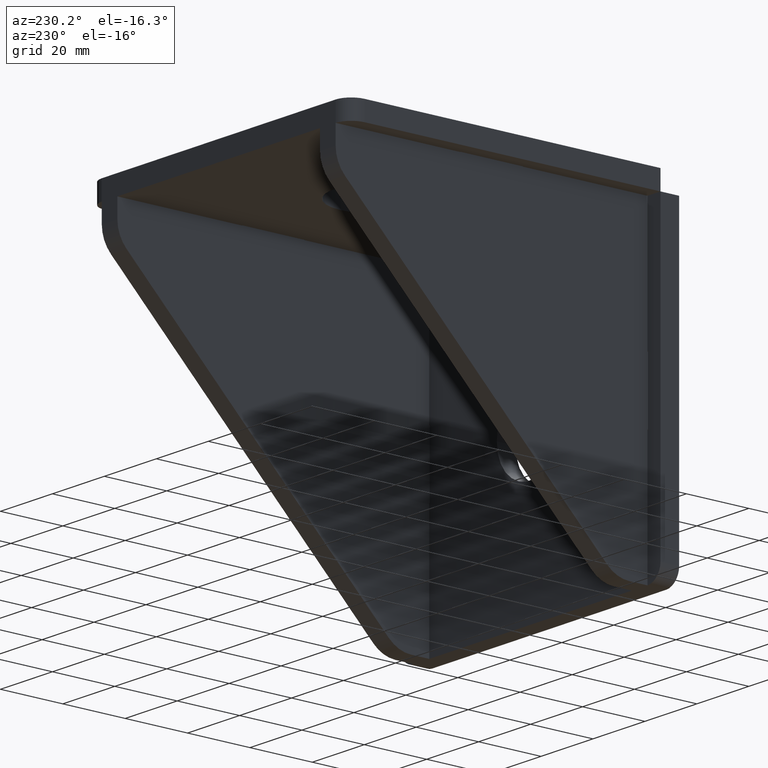
[diagram: clean part render]
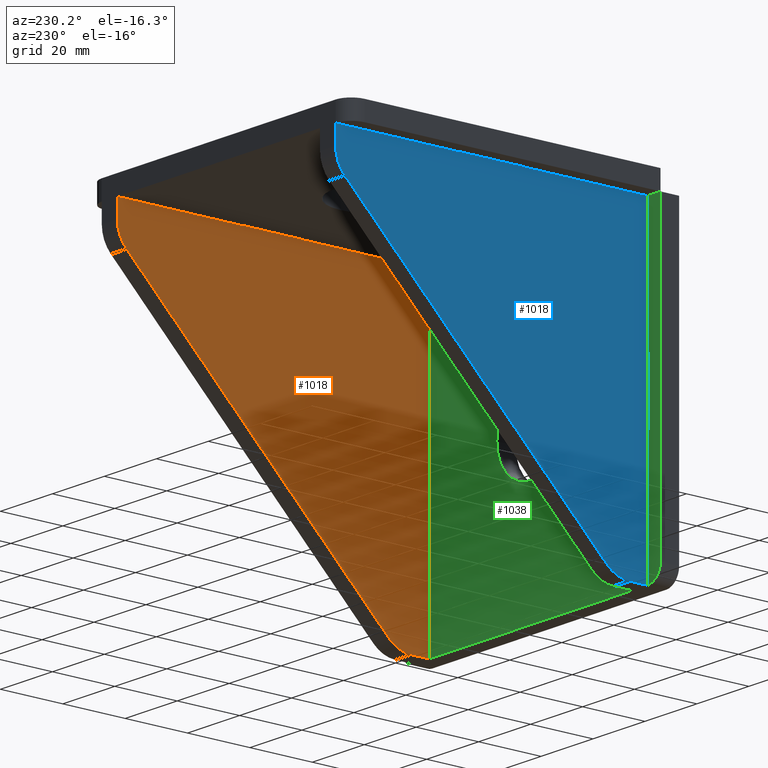
[diagram: same view with three faces highlighted in distinct colors, each labeled with its STEP entity id]
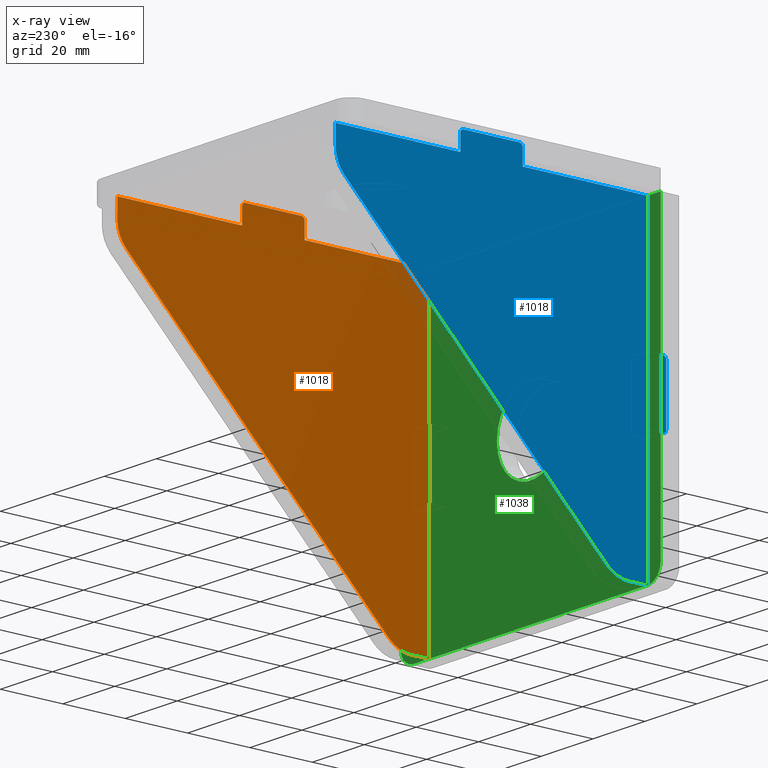
[diagram: x-ray of the same camera — body ghosted, the three highlighted faces saturated]
A machine part, auxiliary view with three faces highlighted in distinct colors.
The next image is the same camera in x-ray (body ghosted, the three faces saturated) — at least one of them is partly hidden behind the body in this view.
Their STEP definitions:

[orange] entity #1018 — the highlighted planar face has unit normal (-1, -0, 0).
#16 = CARTESIAN_POINT ( 'NONE',  ( 2.220446049250313081E-13, 5.204170427930421283E-15, -5.999999999999894307 ) ) ;
#19 = CARTESIAN_POINT ( 'NONE',  ( 10.00000000000034106, 99.99999999999998579, -6.000000000000394351 ) ) ;
#21 = DIRECTION ( 'NONE',  ( -1.000000000000000000, -3.620748295448003404E-32, 3.978414497066003544E-35 ) ) ;
#23 = VECTOR ( 'NONE', #777, 1000.000000000000000 ) ;
#46 = DIRECTION ( 'NONE',  ( 3.978414497066059672E-35, -5.700752635386218125E-32, -1.000000000000000000 ) ) ;
#48 = LINE ( 'NONE', #1036, #503 ) ;
#50 = EDGE_CURVE ( 'NONE', #370, #608, #868, .T. ) ;
#59 = EDGE_CURVE ( 'NONE', #971, #83, #770, .T. ) ;
#64 = VERTEX_POINT ( 'NONE', #1385 ) ;
#67 = DIRECTION ( 'NONE',  ( 1.000000000000000000, 3.620748295448003404E-32, -3.978414497066003544E-35 ) ) ;
#80 = VECTOR ( 'NONE', #253, 1000.000000000000000 ) ;
#83 = VERTEX_POINT ( 'NONE', #1263 ) ;
#84 = VECTOR ( 'NONE', #852, 1000.000000000000000 ) ;
#99 = VERTEX_POINT ( 'NONE', #876 ) ;
#109 = CIRCLE ( 'NONE', #451, 1.000000000000000888 ) ;
#110 = AXIS2_PLACEMENT_3D ( 'NONE', #642, #1374, #21 ) ;
#126 = DIRECTION ( 'NONE',  ( 1.000000000000000000, 0.000000000000000000, 0.000000000000000000 ) ) ;
#138 = VECTOR ( 'NONE', #914, 1000.000000000000000 ) ;
#150 = DIRECTION ( 'NONE',  ( 3.978414497066059672E-35, -5.700752635386218125E-32, -1.000000000000000000 ) ) ;
#155 = CARTESIAN_POINT ( 'NONE',  ( 40.99999999999981526, -6.000000000000000888, -5.999999999999950262 ) ) ;
#157 = LINE ( 'NONE', #1012, #23 ) ;
#164 = AXIS2_PLACEMENT_3D ( 'NONE', #585, #354, #468 ) ;
#167 = VECTOR ( 'NONE', #848, 1000.000000000000000 ) ;
#173 = DIRECTION ( 'NONE',  ( 1.000000000000000000, 0.000000000000000000, 0.000000000000000000 ) ) ;
#184 = CARTESIAN_POINT ( 'NONE',  ( 100.0000000000004263, 9.999999999999991118, -5.999999999999311662 ) ) ;
#186 = CARTESIAN_POINT ( 'NONE',  ( -6.000000000000005329, 58.99999999999997158, -6.000000000000060396 ) ) ;
#219 = EDGE_CURVE ( 'NONE', #1225, #544, #157, .T. ) ;
#223 = EDGE_CURVE ( 'NONE', #916, #538, #48, .T. ) ;
#230 = CARTESIAN_POINT ( 'NONE',  ( 5.857864376268118178, 90.00000000000001421, -5.999999999999616307 ) ) ;
#235 = EDGE_LOOP ( 'NONE', ( #519, #565, #496, #1411, #1087, #892, #836, #303, #379, #317, #1283, #1547, #1014, #613, #1059, #1434, #1125, #332, #1575 ) ) ;
#241 = CARTESIAN_POINT ( 'NONE',  ( -6.000000000000005329, 59.99999999999997158, -6.000000000000060396 ) ) ;
#253 = DIRECTION ( 'NONE',  ( 1.000000000000000000, 3.620748295448003404E-32, -3.978414497066003544E-35 ) ) ;
#284 = DIRECTION ( 'NONE',  ( 1.000000000000000000, 0.000000000000000000, 0.000000000000000000 ) ) ;
#303 = ORIENTED_EDGE ( 'NONE', *, *, #666, .T. ) ;
#317 = ORIENTED_EDGE ( 'NONE', *, *, #514, .F. ) ;
#322 = LINE ( 'NONE', #184, #1044 ) ;
#329 = EDGE_CURVE ( 'NONE', #1223, #916, #1277, .T. ) ;
#332 = ORIENTED_EDGE ( 'NONE', *, *, #647, .F. ) ;
#335 = DIRECTION ( 'NONE',  ( 1.000000000000000000, 3.620748295448003404E-32, -3.978414497066003544E-35 ) ) ;
#340 = EDGE_CURVE ( 'NONE', #99, #1301, #1488, .T. ) ;
#354 = DIRECTION ( 'NONE',  ( 3.978414497066059672E-35, -5.700752635386218125E-32, -1.000000000000000000 ) ) ;
#356 = VERTEX_POINT ( 'NONE', #449 ) ;
#370 = VERTEX_POINT ( 'NONE', #1335 ) ;
#377 = CARTESIAN_POINT ( 'NONE',  ( -12.00000000000001066, 59.99999999999997158, -6.000000000000172307 ) ) ;
#379 = ORIENTED_EDGE ( 'NONE', *, *, #219, .T. ) ;
#386 = FACE_OUTER_BOUND ( 'NONE', #235, .T. ) ;
#397 = CIRCLE ( 'NONE', #1546, 1.000000000000000000 ) ;
#421 = CIRCLE ( 'NONE', #1331, 1.000000000000000000 ) ;
#437 = EDGE_CURVE ( 'NONE', #1312, #356, #1579, .T. ) ;
#443 = LINE ( 'NONE', #793, #138 ) ;
#449 = CARTESIAN_POINT ( 'NONE',  ( 100.0000000000004263, 0.000000000000000000, -5.999999999999311662 ) ) ;
#451 = AXIS2_PLACEMENT_3D ( 'NONE', #1530, #902, #173 ) ;
#458 = CARTESIAN_POINT ( 'NONE',  ( 5.857864376268118178, 99.99999999999998579, -5.999999999999616307 ) ) ;
#468 = DIRECTION ( 'NONE',  ( 1.000000000000000000, 0.000000000000000000, 0.000000000000000000 ) ) ;
#472 = VERTEX_POINT ( 'NONE', #726 ) ;
#492 = CARTESIAN_POINT ( 'NONE',  ( 1.110223024625156540E-13, 99.99999999999998579, -5.999999999999838352 ) ) ;
#496 = ORIENTED_EDGE ( 'NONE', *, *, #1194, .F. ) ;
#503 = VECTOR ( 'NONE', #1157, 1000.000000000000000 ) ;
#514 = EDGE_CURVE ( 'NONE', #538, #544, #985, .T. ) ;
#517 = DIRECTION ( 'NONE',  ( -0.7071067811865483499, 0.7071067811865465735, -2.140574041746968964E-16 ) ) ;
#519 = ORIENTED_EDGE ( 'NONE', *, *, #59, .F. ) ;
#538 = VERTEX_POINT ( 'NONE', #874 ) ;
#544 = VERTEX_POINT ( 'NONE', #976 ) ;
#565 = ORIENTED_EDGE ( 'NONE', *, *, #764, .T. ) ;
#585 = CARTESIAN_POINT ( 'NONE',  ( 58.99999999999994316, -4.999999999999997335, -6.000000000000032863 ) ) ;
#607 = VECTOR ( 'NONE', #517, 1000.000000000000114 ) ;
#608 = VERTEX_POINT ( 'NONE', #880 ) ;
#611 = CIRCLE ( 'NONE', #1514, 9.999999999999994671 ) ;
#613 = ORIENTED_EDGE ( 'NONE', *, *, #1430, .T. ) ;
#621 = VERTEX_POINT ( 'NONE', #1382 ) ;
#628 = DIRECTION ( 'NONE',  ( 1.000000000000000000, 3.620748295448003404E-32, -3.978414497066003544E-35 ) ) ;
#632 = DIRECTION ( 'NONE',  ( -1.000000000000000000, 0.000000000000000000, 0.000000000000000000 ) ) ;
#642 = CARTESIAN_POINT ( 'NONE',  ( 2.220446049250313081E-13, 5.204170427930421283E-15, -5.999999999999894307 ) ) ;
#647 = EDGE_CURVE ( 'NONE', #820, #621, #1099, .T. ) ;
#666 = EDGE_CURVE ( 'NONE', #785, #1225, #109, .T. ) ;
#708 = CARTESIAN_POINT ( 'NONE',  ( -12.00000000000012079, 40.00000000000000711, -6.000000000000560441 ) ) ;
#726 = CARTESIAN_POINT ( 'NONE',  ( 100.0000000000004263, 5.857864376269026785, -5.999999999999311662 ) ) ;
#739 = EDGE_CURVE ( 'NONE', #1007, #370, #421, .T. ) ;
#764 = EDGE_CURVE ( 'NONE', #971, #472, #611, .T. ) ;
#770 = LINE ( 'NONE', #19, #607 ) ;
#777 = DIRECTION ( 'NONE',  ( 4.237045877651918877E-32, 1.000000000000000000, 4.005934284325450574E-32 ) ) ;
#779 = DIRECTION ( 'NONE',  ( 3.978414497066059672E-35, -5.700752635386218125E-32, -1.000000000000000000 ) ) ;
#780 = DIRECTION ( 'NONE',  ( -1.000000000000000000, 0.000000000000000000, 0.000000000000000000 ) ) ;
#785 = VERTEX_POINT ( 'NONE', #155 ) ;
#793 = CARTESIAN_POINT ( 'NONE',  ( 59.99999999999972289, -11.99999999999999645, -6.000000000000199840 ) ) ;
#820 = VERTEX_POINT ( 'NONE', #458 ) ;
#831 = DIRECTION ( 'NONE',  ( 1.000000000000000000, 3.620748295448003404E-32, -3.978414497066003544E-35 ) ) ;
#836 = ORIENTED_EDGE ( 'NONE', *, *, #854, .F. ) ;
#837 = CARTESIAN_POINT ( 'NONE',  ( 39.99999999999958789, -6.000000000000006217, -5.999999999999783284 ) ) ;
#838 = VECTOR ( 'NONE', #335, 1000.000000000000000 ) ;
#848 = DIRECTION ( 'NONE',  ( -4.237045877651918877E-32, -1.000000000000000000, -4.005934284325450574E-32 ) ) ;
#852 = DIRECTION ( 'NONE',  ( 4.237045877651918877E-32, 1.000000000000000000, 4.005934284325450574E-32 ) ) ;
#854 = EDGE_CURVE ( 'NONE', #785, #1301, #952, .T. ) ;
#868 = LINE ( 'NONE', #377, #1303 ) ;
#874 = CARTESIAN_POINT ( 'NONE',  ( 2.220446049250313081E-13, 5.204170427930421283E-15, -5.999999999999894307 ) ) ;
#876 = CARTESIAN_POINT ( 'NONE',  ( 59.99999999999972289, -4.999999999999997335, -6.000000000000199840 ) ) ;
#880 = CARTESIAN_POINT ( 'NONE',  ( 2.220446049250313081E-13, 59.99999999999997158, -5.999999999999894307 ) ) ;
#892 = ORIENTED_EDGE ( 'NONE', *, *, #340, .T. ) ;
#902 = DIRECTION ( 'NONE',  ( 3.978414497066059672E-35, -5.700752635386218125E-32, -1.000000000000000000 ) ) ;
#909 = DIRECTION ( 'NONE',  ( 3.978414497066059672E-35, -5.700752635386218125E-32, -1.000000000000000000 ) ) ;
#914 = DIRECTION ( 'NONE',  ( 4.237045877651918877E-32, 1.000000000000000000, 4.005934284325450574E-32 ) ) ;
#916 = VERTEX_POINT ( 'NONE', #1456 ) ;
#917 = VECTOR ( 'NONE', #67, 1000.000000000000000 ) ;
#926 = CARTESIAN_POINT ( 'NONE',  ( 89.99999999999953104, 5.857864376269058759, -6.000000000000227374 ) ) ;
#937 = DIRECTION ( 'NONE',  ( 4.237045877651918877E-32, 1.000000000000000000, 4.005934284325450574E-32 ) ) ;
#952 = LINE ( 'NONE', #837, #917 ) ;
#971 = VERTEX_POINT ( 'NONE', #1088 ) ;
#976 = CARTESIAN_POINT ( 'NONE',  ( 39.99999999999958789, -1.301042606982605321E-14, -5.999999999999783284 ) ) ;
#985 = LINE ( 'NONE', #998, #80 ) ;
#998 = CARTESIAN_POINT ( 'NONE',  ( 2.220446049250313081E-13, 5.204170427930421283E-15, -5.999999999999894307 ) ) ;
#1007 = VERTEX_POINT ( 'NONE', #186 ) ;
#1012 = CARTESIAN_POINT ( 'NONE',  ( 39.99999999999958789, -11.99999999999999645, -5.999999999999783284 ) ) ;
#1014 = ORIENTED_EDGE ( 'NONE', *, *, #1539, .T. ) ;
#1018 = ADVANCED_FACE ( 'NONE', ( #386 ), #1343, .T. ) ;
#1027 = EDGE_CURVE ( 'NONE', #621, #608, #1135, .T. ) ;
#1036 = CARTESIAN_POINT ( 'NONE',  ( 2.220446049250313081E-13, 5.204170427930421283E-15, -5.999999999999894307 ) ) ;
#1044 = VECTOR ( 'NONE', #937, 1000.000000000000000 ) ;
#1059 = ORIENTED_EDGE ( 'NONE', *, *, #739, .T. ) ;
#1060 = CARTESIAN_POINT ( 'NONE',  ( 39.99999999999958789, -4.999999999999997335, -5.999999999999783284 ) ) ;
#1073 = VECTOR ( 'NONE', #1113, 1000.000000000000000 ) ;
#1074 = CIRCLE ( 'NONE', #1281, 10.00000000000000000 ) ;
#1087 = ORIENTED_EDGE ( 'NONE', *, *, #1189, .F. ) ;
#1088 = CARTESIAN_POINT ( 'NONE',  ( 97.07106781186492128, 12.92893218813452272, -5.999999999999588773 ) ) ;
#1099 = LINE ( 'NONE', #492, #1073 ) ;
#1113 = DIRECTION ( 'NONE',  ( -1.000000000000000000, -3.620748295448003404E-32, 3.978414497066003544E-35 ) ) ;
#1117 = EDGE_CURVE ( 'NONE', #820, #83, #1074, .T. ) ;
#1125 = ORIENTED_EDGE ( 'NONE', *, *, #1027, .F. ) ;
#1135 = LINE ( 'NONE', #16, #167 ) ;
#1157 = DIRECTION ( 'NONE',  ( -4.237045877651918877E-32, -1.000000000000000000, -4.005934284325450574E-32 ) ) ;
#1168 = CARTESIAN_POINT ( 'NONE',  ( -5.000000000000115463, 40.00000000000000711, -6.000000000000227374 ) ) ;
#1189 = EDGE_CURVE ( 'NONE', #99, #1312, #443, .T. ) ;
#1194 = EDGE_CURVE ( 'NONE', #356, #472, #322, .T. ) ;
#1223 = VERTEX_POINT ( 'NONE', #1168 ) ;
#1225 = VERTEX_POINT ( 'NONE', #1060 ) ;
#1263 = CARTESIAN_POINT ( 'NONE',  ( 12.92893218813417988, 97.07106781186548972, -6.000000000000116351 ) ) ;
#1277 = LINE ( 'NONE', #708, #1568 ) ;
#1281 = AXIS2_PLACEMENT_3D ( 'NONE', #230, #779, #632 ) ;
#1283 = ORIENTED_EDGE ( 'NONE', *, *, #223, .F. ) ;
#1292 = CARTESIAN_POINT ( 'NONE',  ( -5.000000000000115463, 58.99999999999997158, -6.000000000000227374 ) ) ;
#1297 = CARTESIAN_POINT ( 'NONE',  ( 58.99999999999994316, -6.000000000000000888, -6.000000000000032863 ) ) ;
#1301 = VERTEX_POINT ( 'NONE', #1297 ) ;
#1303 = VECTOR ( 'NONE', #628, 1000.000000000000000 ) ;
#1312 = VERTEX_POINT ( 'NONE', #1413 ) ;
#1319 = CARTESIAN_POINT ( 'NONE',  ( -5.000000000000115463, 41.00000000000000711, -6.000000000000227374 ) ) ;
#1331 = AXIS2_PLACEMENT_3D ( 'NONE', #1292, #46, #284 ) ;
#1335 = CARTESIAN_POINT ( 'NONE',  ( -5.000000000000115463, 59.99999999999997158, -6.000000000000227374 ) ) ;
#1343 = PLANE ( 'NONE',  #110 ) ;
#1374 = DIRECTION ( 'NONE',  ( -3.978414497066003544E-35, -5.700752635386218125E-32, -1.000000000000000000 ) ) ;
#1382 = CARTESIAN_POINT ( 'NONE',  ( 1.110223024625156540E-13, 99.99999999999998579, -5.999999999999838352 ) ) ;
#1385 = CARTESIAN_POINT ( 'NONE',  ( -6.000000000000560441, 41.00000000000000711, -5.999999999999894307 ) ) ;
#1411 = ORIENTED_EDGE ( 'NONE', *, *, #437, .F. ) ;
#1413 = CARTESIAN_POINT ( 'NONE',  ( 59.99999999999972289, -2.602085213965210642E-15, -6.000000000000199840 ) ) ;
#1430 = EDGE_CURVE ( 'NONE', #64, #1007, #1588, .T. ) ;
#1434 = ORIENTED_EDGE ( 'NONE', *, *, #50, .T. ) ;
#1451 = CARTESIAN_POINT ( 'NONE',  ( 2.220446049250313081E-13, 5.204170427930421283E-15, -5.999999999999894307 ) ) ;
#1456 = CARTESIAN_POINT ( 'NONE',  ( 2.220446049250313081E-13, 40.00000000000000711, -5.999999999999894307 ) ) ;
#1488 = CIRCLE ( 'NONE', #164, 1.000000000000000888 ) ;
#1514 = AXIS2_PLACEMENT_3D ( 'NONE', #926, #909, #780 ) ;
#1530 = CARTESIAN_POINT ( 'NONE',  ( 40.99999999999981526, -4.999999999999997335, -5.999999999999950262 ) ) ;
#1539 = EDGE_CURVE ( 'NONE', #1223, #64, #397, .T. ) ;
#1546 = AXIS2_PLACEMENT_3D ( 'NONE', #1319, #150, #126 ) ;
#1547 = ORIENTED_EDGE ( 'NONE', *, *, #329, .F. ) ;
#1568 = VECTOR ( 'NONE', #831, 1000.000000000000000 ) ;
#1575 = ORIENTED_EDGE ( 'NONE', *, *, #1117, .T. ) ;
#1579 = LINE ( 'NONE', #1451, #838 ) ;
#1588 = LINE ( 'NONE', #241, #84 ) ;

[blue] entity #1018 — the highlighted planar face has unit normal (-1, -0, 0).
#16 = CARTESIAN_POINT ( 'NONE',  ( 2.220446049250313081E-13, 5.204170427930421283E-15, -5.999999999999894307 ) ) ;
#19 = CARTESIAN_POINT ( 'NONE',  ( 10.00000000000034106, 99.99999999999998579, -6.000000000000394351 ) ) ;
#21 = DIRECTION ( 'NONE',  ( -1.000000000000000000, -3.620748295448003404E-32, 3.978414497066003544E-35 ) ) ;
#23 = VECTOR ( 'NONE', #777, 1000.000000000000000 ) ;
#46 = DIRECTION ( 'NONE',  ( 3.978414497066059672E-35, -5.700752635386218125E-32, -1.000000000000000000 ) ) ;
#48 = LINE ( 'NONE', #1036, #503 ) ;
#50 = EDGE_CURVE ( 'NONE', #370, #608, #868, .T. ) ;
#59 = EDGE_CURVE ( 'NONE', #971, #83, #770, .T. ) ;
#64 = VERTEX_POINT ( 'NONE', #1385 ) ;
#67 = DIRECTION ( 'NONE',  ( 1.000000000000000000, 3.620748295448003404E-32, -3.978414497066003544E-35 ) ) ;
#80 = VECTOR ( 'NONE', #253, 1000.000000000000000 ) ;
#83 = VERTEX_POINT ( 'NONE', #1263 ) ;
#84 = VECTOR ( 'NONE', #852, 1000.000000000000000 ) ;
#99 = VERTEX_POINT ( 'NONE', #876 ) ;
#109 = CIRCLE ( 'NONE', #451, 1.000000000000000888 ) ;
#110 = AXIS2_PLACEMENT_3D ( 'NONE', #642, #1374, #21 ) ;
#126 = DIRECTION ( 'NONE',  ( 1.000000000000000000, 0.000000000000000000, 0.000000000000000000 ) ) ;
#138 = VECTOR ( 'NONE', #914, 1000.000000000000000 ) ;
#150 = DIRECTION ( 'NONE',  ( 3.978414497066059672E-35, -5.700752635386218125E-32, -1.000000000000000000 ) ) ;
#155 = CARTESIAN_POINT ( 'NONE',  ( 40.99999999999981526, -6.000000000000000888, -5.999999999999950262 ) ) ;
#157 = LINE ( 'NONE', #1012, #23 ) ;
#164 = AXIS2_PLACEMENT_3D ( 'NONE', #585, #354, #468 ) ;
#167 = VECTOR ( 'NONE', #848, 1000.000000000000000 ) ;
#173 = DIRECTION ( 'NONE',  ( 1.000000000000000000, 0.000000000000000000, 0.000000000000000000 ) ) ;
#184 = CARTESIAN_POINT ( 'NONE',  ( 100.0000000000004263, 9.999999999999991118, -5.999999999999311662 ) ) ;
#186 = CARTESIAN_POINT ( 'NONE',  ( -6.000000000000005329, 58.99999999999997158, -6.000000000000060396 ) ) ;
#219 = EDGE_CURVE ( 'NONE', #1225, #544, #157, .T. ) ;
#223 = EDGE_CURVE ( 'NONE', #916, #538, #48, .T. ) ;
#230 = CARTESIAN_POINT ( 'NONE',  ( 5.857864376268118178, 90.00000000000001421, -5.999999999999616307 ) ) ;
#235 = EDGE_LOOP ( 'NONE', ( #519, #565, #496, #1411, #1087, #892, #836, #303, #379, #317, #1283, #1547, #1014, #613, #1059, #1434, #1125, #332, #1575 ) ) ;
#241 = CARTESIAN_POINT ( 'NONE',  ( -6.000000000000005329, 59.99999999999997158, -6.000000000000060396 ) ) ;
#253 = DIRECTION ( 'NONE',  ( 1.000000000000000000, 3.620748295448003404E-32, -3.978414497066003544E-35 ) ) ;
#284 = DIRECTION ( 'NONE',  ( 1.000000000000000000, 0.000000000000000000, 0.000000000000000000 ) ) ;
#303 = ORIENTED_EDGE ( 'NONE', *, *, #666, .T. ) ;
#317 = ORIENTED_EDGE ( 'NONE', *, *, #514, .F. ) ;
#322 = LINE ( 'NONE', #184, #1044 ) ;
#329 = EDGE_CURVE ( 'NONE', #1223, #916, #1277, .T. ) ;
#332 = ORIENTED_EDGE ( 'NONE', *, *, #647, .F. ) ;
#335 = DIRECTION ( 'NONE',  ( 1.000000000000000000, 3.620748295448003404E-32, -3.978414497066003544E-35 ) ) ;
#340 = EDGE_CURVE ( 'NONE', #99, #1301, #1488, .T. ) ;
#354 = DIRECTION ( 'NONE',  ( 3.978414497066059672E-35, -5.700752635386218125E-32, -1.000000000000000000 ) ) ;
#356 = VERTEX_POINT ( 'NONE', #449 ) ;
#370 = VERTEX_POINT ( 'NONE', #1335 ) ;
#377 = CARTESIAN_POINT ( 'NONE',  ( -12.00000000000001066, 59.99999999999997158, -6.000000000000172307 ) ) ;
#379 = ORIENTED_EDGE ( 'NONE', *, *, #219, .T. ) ;
#386 = FACE_OUTER_BOUND ( 'NONE', #235, .T. ) ;
#397 = CIRCLE ( 'NONE', #1546, 1.000000000000000000 ) ;
#421 = CIRCLE ( 'NONE', #1331, 1.000000000000000000 ) ;
#437 = EDGE_CURVE ( 'NONE', #1312, #356, #1579, .T. ) ;
#443 = LINE ( 'NONE', #793, #138 ) ;
#449 = CARTESIAN_POINT ( 'NONE',  ( 100.0000000000004263, 0.000000000000000000, -5.999999999999311662 ) ) ;
#451 = AXIS2_PLACEMENT_3D ( 'NONE', #1530, #902, #173 ) ;
#458 = CARTESIAN_POINT ( 'NONE',  ( 5.857864376268118178, 99.99999999999998579, -5.999999999999616307 ) ) ;
#468 = DIRECTION ( 'NONE',  ( 1.000000000000000000, 0.000000000000000000, 0.000000000000000000 ) ) ;
#472 = VERTEX_POINT ( 'NONE', #726 ) ;
#492 = CARTESIAN_POINT ( 'NONE',  ( 1.110223024625156540E-13, 99.99999999999998579, -5.999999999999838352 ) ) ;
#496 = ORIENTED_EDGE ( 'NONE', *, *, #1194, .F. ) ;
#503 = VECTOR ( 'NONE', #1157, 1000.000000000000000 ) ;
#514 = EDGE_CURVE ( 'NONE', #538, #544, #985, .T. ) ;
#517 = DIRECTION ( 'NONE',  ( -0.7071067811865483499, 0.7071067811865465735, -2.140574041746968964E-16 ) ) ;
#519 = ORIENTED_EDGE ( 'NONE', *, *, #59, .F. ) ;
#538 = VERTEX_POINT ( 'NONE', #874 ) ;
#544 = VERTEX_POINT ( 'NONE', #976 ) ;
#565 = ORIENTED_EDGE ( 'NONE', *, *, #764, .T. ) ;
#585 = CARTESIAN_POINT ( 'NONE',  ( 58.99999999999994316, -4.999999999999997335, -6.000000000000032863 ) ) ;
#607 = VECTOR ( 'NONE', #517, 1000.000000000000114 ) ;
#608 = VERTEX_POINT ( 'NONE', #880 ) ;
#611 = CIRCLE ( 'NONE', #1514, 9.999999999999994671 ) ;
#613 = ORIENTED_EDGE ( 'NONE', *, *, #1430, .T. ) ;
#621 = VERTEX_POINT ( 'NONE', #1382 ) ;
#628 = DIRECTION ( 'NONE',  ( 1.000000000000000000, 3.620748295448003404E-32, -3.978414497066003544E-35 ) ) ;
#632 = DIRECTION ( 'NONE',  ( -1.000000000000000000, 0.000000000000000000, 0.000000000000000000 ) ) ;
#642 = CARTESIAN_POINT ( 'NONE',  ( 2.220446049250313081E-13, 5.204170427930421283E-15, -5.999999999999894307 ) ) ;
#647 = EDGE_CURVE ( 'NONE', #820, #621, #1099, .T. ) ;
#666 = EDGE_CURVE ( 'NONE', #785, #1225, #109, .T. ) ;
#708 = CARTESIAN_POINT ( 'NONE',  ( -12.00000000000012079, 40.00000000000000711, -6.000000000000560441 ) ) ;
#726 = CARTESIAN_POINT ( 'NONE',  ( 100.0000000000004263, 5.857864376269026785, -5.999999999999311662 ) ) ;
#739 = EDGE_CURVE ( 'NONE', #1007, #370, #421, .T. ) ;
#764 = EDGE_CURVE ( 'NONE', #971, #472, #611, .T. ) ;
#770 = LINE ( 'NONE', #19, #607 ) ;
#777 = DIRECTION ( 'NONE',  ( 4.237045877651918877E-32, 1.000000000000000000, 4.005934284325450574E-32 ) ) ;
#779 = DIRECTION ( 'NONE',  ( 3.978414497066059672E-35, -5.700752635386218125E-32, -1.000000000000000000 ) ) ;
#780 = DIRECTION ( 'NONE',  ( -1.000000000000000000, 0.000000000000000000, 0.000000000000000000 ) ) ;
#785 = VERTEX_POINT ( 'NONE', #155 ) ;
#793 = CARTESIAN_POINT ( 'NONE',  ( 59.99999999999972289, -11.99999999999999645, -6.000000000000199840 ) ) ;
#820 = VERTEX_POINT ( 'NONE', #458 ) ;
#831 = DIRECTION ( 'NONE',  ( 1.000000000000000000, 3.620748295448003404E-32, -3.978414497066003544E-35 ) ) ;
#836 = ORIENTED_EDGE ( 'NONE', *, *, #854, .F. ) ;
#837 = CARTESIAN_POINT ( 'NONE',  ( 39.99999999999958789, -6.000000000000006217, -5.999999999999783284 ) ) ;
#838 = VECTOR ( 'NONE', #335, 1000.000000000000000 ) ;
#848 = DIRECTION ( 'NONE',  ( -4.237045877651918877E-32, -1.000000000000000000, -4.005934284325450574E-32 ) ) ;
#852 = DIRECTION ( 'NONE',  ( 4.237045877651918877E-32, 1.000000000000000000, 4.005934284325450574E-32 ) ) ;
#854 = EDGE_CURVE ( 'NONE', #785, #1301, #952, .T. ) ;
#868 = LINE ( 'NONE', #377, #1303 ) ;
#874 = CARTESIAN_POINT ( 'NONE',  ( 2.220446049250313081E-13, 5.204170427930421283E-15, -5.999999999999894307 ) ) ;
#876 = CARTESIAN_POINT ( 'NONE',  ( 59.99999999999972289, -4.999999999999997335, -6.000000000000199840 ) ) ;
#880 = CARTESIAN_POINT ( 'NONE',  ( 2.220446049250313081E-13, 59.99999999999997158, -5.999999999999894307 ) ) ;
#892 = ORIENTED_EDGE ( 'NONE', *, *, #340, .T. ) ;
#902 = DIRECTION ( 'NONE',  ( 3.978414497066059672E-35, -5.700752635386218125E-32, -1.000000000000000000 ) ) ;
#909 = DIRECTION ( 'NONE',  ( 3.978414497066059672E-35, -5.700752635386218125E-32, -1.000000000000000000 ) ) ;
#914 = DIRECTION ( 'NONE',  ( 4.237045877651918877E-32, 1.000000000000000000, 4.005934284325450574E-32 ) ) ;
#916 = VERTEX_POINT ( 'NONE', #1456 ) ;
#917 = VECTOR ( 'NONE', #67, 1000.000000000000000 ) ;
#926 = CARTESIAN_POINT ( 'NONE',  ( 89.99999999999953104, 5.857864376269058759, -6.000000000000227374 ) ) ;
#937 = DIRECTION ( 'NONE',  ( 4.237045877651918877E-32, 1.000000000000000000, 4.005934284325450574E-32 ) ) ;
#952 = LINE ( 'NONE', #837, #917 ) ;
#971 = VERTEX_POINT ( 'NONE', #1088 ) ;
#976 = CARTESIAN_POINT ( 'NONE',  ( 39.99999999999958789, -1.301042606982605321E-14, -5.999999999999783284 ) ) ;
#985 = LINE ( 'NONE', #998, #80 ) ;
#998 = CARTESIAN_POINT ( 'NONE',  ( 2.220446049250313081E-13, 5.204170427930421283E-15, -5.999999999999894307 ) ) ;
#1007 = VERTEX_POINT ( 'NONE', #186 ) ;
#1012 = CARTESIAN_POINT ( 'NONE',  ( 39.99999999999958789, -11.99999999999999645, -5.999999999999783284 ) ) ;
#1014 = ORIENTED_EDGE ( 'NONE', *, *, #1539, .T. ) ;
#1018 = ADVANCED_FACE ( 'NONE', ( #386 ), #1343, .T. ) ;
#1027 = EDGE_CURVE ( 'NONE', #621, #608, #1135, .T. ) ;
#1036 = CARTESIAN_POINT ( 'NONE',  ( 2.220446049250313081E-13, 5.204170427930421283E-15, -5.999999999999894307 ) ) ;
#1044 = VECTOR ( 'NONE', #937, 1000.000000000000000 ) ;
#1059 = ORIENTED_EDGE ( 'NONE', *, *, #739, .T. ) ;
#1060 = CARTESIAN_POINT ( 'NONE',  ( 39.99999999999958789, -4.999999999999997335, -5.999999999999783284 ) ) ;
#1073 = VECTOR ( 'NONE', #1113, 1000.000000000000000 ) ;
#1074 = CIRCLE ( 'NONE', #1281, 10.00000000000000000 ) ;
#1087 = ORIENTED_EDGE ( 'NONE', *, *, #1189, .F. ) ;
#1088 = CARTESIAN_POINT ( 'NONE',  ( 97.07106781186492128, 12.92893218813452272, -5.999999999999588773 ) ) ;
#1099 = LINE ( 'NONE', #492, #1073 ) ;
#1113 = DIRECTION ( 'NONE',  ( -1.000000000000000000, -3.620748295448003404E-32, 3.978414497066003544E-35 ) ) ;
#1117 = EDGE_CURVE ( 'NONE', #820, #83, #1074, .T. ) ;
#1125 = ORIENTED_EDGE ( 'NONE', *, *, #1027, .F. ) ;
#1135 = LINE ( 'NONE', #16, #167 ) ;
#1157 = DIRECTION ( 'NONE',  ( -4.237045877651918877E-32, -1.000000000000000000, -4.005934284325450574E-32 ) ) ;
#1168 = CARTESIAN_POINT ( 'NONE',  ( -5.000000000000115463, 40.00000000000000711, -6.000000000000227374 ) ) ;
#1189 = EDGE_CURVE ( 'NONE', #99, #1312, #443, .T. ) ;
#1194 = EDGE_CURVE ( 'NONE', #356, #472, #322, .T. ) ;
#1223 = VERTEX_POINT ( 'NONE', #1168 ) ;
#1225 = VERTEX_POINT ( 'NONE', #1060 ) ;
#1263 = CARTESIAN_POINT ( 'NONE',  ( 12.92893218813417988, 97.07106781186548972, -6.000000000000116351 ) ) ;
#1277 = LINE ( 'NONE', #708, #1568 ) ;
#1281 = AXIS2_PLACEMENT_3D ( 'NONE', #230, #779, #632 ) ;
#1283 = ORIENTED_EDGE ( 'NONE', *, *, #223, .F. ) ;
#1292 = CARTESIAN_POINT ( 'NONE',  ( -5.000000000000115463, 58.99999999999997158, -6.000000000000227374 ) ) ;
#1297 = CARTESIAN_POINT ( 'NONE',  ( 58.99999999999994316, -6.000000000000000888, -6.000000000000032863 ) ) ;
#1301 = VERTEX_POINT ( 'NONE', #1297 ) ;
#1303 = VECTOR ( 'NONE', #628, 1000.000000000000000 ) ;
#1312 = VERTEX_POINT ( 'NONE', #1413 ) ;
#1319 = CARTESIAN_POINT ( 'NONE',  ( -5.000000000000115463, 41.00000000000000711, -6.000000000000227374 ) ) ;
#1331 = AXIS2_PLACEMENT_3D ( 'NONE', #1292, #46, #284 ) ;
#1335 = CARTESIAN_POINT ( 'NONE',  ( -5.000000000000115463, 59.99999999999997158, -6.000000000000227374 ) ) ;
#1343 = PLANE ( 'NONE',  #110 ) ;
#1374 = DIRECTION ( 'NONE',  ( -3.978414497066003544E-35, -5.700752635386218125E-32, -1.000000000000000000 ) ) ;
#1382 = CARTESIAN_POINT ( 'NONE',  ( 1.110223024625156540E-13, 99.99999999999998579, -5.999999999999838352 ) ) ;
#1385 = CARTESIAN_POINT ( 'NONE',  ( -6.000000000000560441, 41.00000000000000711, -5.999999999999894307 ) ) ;
#1411 = ORIENTED_EDGE ( 'NONE', *, *, #437, .F. ) ;
#1413 = CARTESIAN_POINT ( 'NONE',  ( 59.99999999999972289, -2.602085213965210642E-15, -6.000000000000199840 ) ) ;
#1430 = EDGE_CURVE ( 'NONE', #64, #1007, #1588, .T. ) ;
#1434 = ORIENTED_EDGE ( 'NONE', *, *, #50, .T. ) ;
#1451 = CARTESIAN_POINT ( 'NONE',  ( 2.220446049250313081E-13, 5.204170427930421283E-15, -5.999999999999894307 ) ) ;
#1456 = CARTESIAN_POINT ( 'NONE',  ( 2.220446049250313081E-13, 40.00000000000000711, -5.999999999999894307 ) ) ;
#1488 = CIRCLE ( 'NONE', #164, 1.000000000000000888 ) ;
#1514 = AXIS2_PLACEMENT_3D ( 'NONE', #926, #909, #780 ) ;
#1530 = CARTESIAN_POINT ( 'NONE',  ( 40.99999999999981526, -4.999999999999997335, -5.999999999999950262 ) ) ;
#1539 = EDGE_CURVE ( 'NONE', #1223, #64, #397, .T. ) ;
#1546 = AXIS2_PLACEMENT_3D ( 'NONE', #1319, #150, #126 ) ;
#1547 = ORIENTED_EDGE ( 'NONE', *, *, #329, .F. ) ;
#1568 = VECTOR ( 'NONE', #831, 1000.000000000000000 ) ;
#1575 = ORIENTED_EDGE ( 'NONE', *, *, #1117, .T. ) ;
#1579 = LINE ( 'NONE', #1451, #838 ) ;
#1588 = LINE ( 'NONE', #241, #84 ) ;

[green] entity #1038 — the highlighted planar face has unit normal (0, -1, -0).
#5 = VERTEX_POINT ( 'NONE', #510 ) ;
#11 = CARTESIAN_POINT ( 'NONE',  ( 45.20000000000071338, 10.19999999999998685, -9.992007221626408864E-13 ) ) ;
#25 = AXIS2_PLACEMENT_3D ( 'NONE', #720, #700, #94 ) ;
#29 = VECTOR ( 'NONE', #464, 1000.000000000000000 ) ;
#31 = FACE_BOUND ( 'NONE', #1296, .T. ) ;
#51 = CIRCLE ( 'NONE', #1151, 4.999999999999997335 ) ;
#66 = VERTEX_POINT ( 'NONE', #273 ) ;
#82 = VECTOR ( 'NONE', #1273, 1000.000000000000000 ) ;
#87 = CARTESIAN_POINT ( 'NONE',  ( -38.79999999999989058, 10.19999999999976481, -3.339342691255353657E-13 ) ) ;
#94 = DIRECTION ( 'NONE',  ( -1.000000000000000000, -1.387778780781446464E-15, 0.000000000000000000 ) ) ;
#113 = EDGE_CURVE ( 'NONE', #989, #649, #915, .T. ) ;
#142 = DIRECTION ( 'NONE',  ( 1.000000000000000000, 1.805559322863033398E-34, 1.540743955509788682E-33 ) ) ;
#146 = CARTESIAN_POINT ( 'NONE',  ( 0.000000000000000000, 0.000000000000000000, 0.000000000000000000 ) ) ;
#169 = ORIENTED_EDGE ( 'NONE', *, *, #113, .F. ) ;
#172 = VERTEX_POINT ( 'NONE', #1270 ) ;
#180 = CARTESIAN_POINT ( 'NONE',  ( -44.99999999999981526, 45.00000000000014921, -3.330669073875469621E-13 ) ) ;
#183 = EDGE_LOOP ( 'NONE', ( #1128, #808, #445, #198 ) ) ;
#195 = LINE ( 'NONE', #326, #1360 ) ;
#198 = ORIENTED_EDGE ( 'NONE', *, *, #1342, .T. ) ;
#207 = EDGE_CURVE ( 'NONE', #649, #989, #1202, .T. ) ;
#211 = CARTESIAN_POINT ( 'NONE',  ( 50.00000000000065370, -50.00000000000027001, -9.992007221626408864E-13 ) ) ;
#222 = DIRECTION ( 'NONE',  ( -1.805559322863035323E-34, -1.000000000000000000, 1.232595164407830946E-32 ) ) ;
#233 = ORIENTED_EDGE ( 'NONE', *, *, #612, .T. ) ;
#248 = CARTESIAN_POINT ( 'NONE',  ( 0.000000000000000000, 0.000000000000000000, 0.000000000000000000 ) ) ;
#259 = CARTESIAN_POINT ( 'NONE',  ( -38.79999999999989058, 10.19999999999976481, -3.339342691255353657E-13 ) ) ;
#265 = LINE ( 'NONE', #765, #82 ) ;
#273 = CARTESIAN_POINT ( 'NONE',  ( -49.99999999999993605, -50.00000000000049027, -4.440892098500626162E-13 ) ) ;
#282 = ORIENTED_EDGE ( 'NONE', *, *, #1105, .T. ) ;
#288 = LINE ( 'NONE', #786, #790 ) ;
#293 = VECTOR ( 'NONE', #1392, 1000.000000000000000 ) ;
#326 = CARTESIAN_POINT ( 'NONE',  ( -45.19999999999957652, 10.19999999999965468, -5.551115123125782702E-13 ) ) ;
#330 = VERTEX_POINT ( 'NONE', #211 ) ;
#339 = CARTESIAN_POINT ( 'NONE',  ( 38.80000000000066507, -10.20000000000031903, -5.551115123125782702E-13 ) ) ;
#378 = EDGE_CURVE ( 'NONE', #1552, #1403, #816, .T. ) ;
#402 = FACE_BOUND ( 'NONE', #1209, .T. ) ;
#445 = ORIENTED_EDGE ( 'NONE', *, *, #378, .T. ) ;
#459 = DIRECTION ( 'NONE',  ( 1.805559322863035323E-34, 1.000000000000000000, -1.232595164407830946E-32 ) ) ;
#461 = EDGE_CURVE ( 'NONE', #172, #477, #1304, .T. ) ;
#464 = DIRECTION ( 'NONE',  ( -1.000000000000000000, -1.805559322863033398E-34, -1.540743955509788682E-33 ) ) ;
#470 = EDGE_LOOP ( 'NONE', ( #641, #1608, #233, #1291, #828, #1427 ) ) ;
#477 = VERTEX_POINT ( 'NONE', #1221 ) ;
#499 = CARTESIAN_POINT ( 'NONE',  ( 50.00000000000065370, -50.00000000000027001, -9.992007221626408864E-13 ) ) ;
#510 = CARTESIAN_POINT ( 'NONE',  ( 45.20000000000054285, -10.19999999999987494, -1.000068083900629290E-12 ) ) ;
#512 = VERTEX_POINT ( 'NONE', #11 ) ;
#515 = CARTESIAN_POINT ( 'NONE',  ( -45.19999999999957652, 10.19999999999965468, -5.551115123125782702E-13 ) ) ;
#521 = LINE ( 'NONE', #1170, #293 ) ;
#527 = PLANE ( 'NONE',  #894 ) ;
#557 = DIRECTION ( 'NONE',  ( -0.000000000000000000, -0.000000000000000000, 1.000000000000000000 ) ) ;
#583 = VECTOR ( 'NONE', #459, 1000.000000000000000 ) ;
#601 = VERTEX_POINT ( 'NONE', #637 ) ;
#604 = LINE ( 'NONE', #259, #633 ) ;
#605 = LINE ( 'NONE', #735, #707 ) ;
#612 = EDGE_CURVE ( 'NONE', #477, #1321, #605, .T. ) ;
#619 = VERTEX_POINT ( 'NONE', #515 ) ;
#625 = ORIENTED_EDGE ( 'NONE', *, *, #877, .T. ) ;
#633 = VECTOR ( 'NONE', #900, 1000.000000000000000 ) ;
#637 = CARTESIAN_POINT ( 'NONE',  ( -45.19999999999968310, -10.20000000000031903, -9.992007221626408864E-13 ) ) ;
#641 = ORIENTED_EDGE ( 'NONE', *, *, #662, .T. ) ;
#649 = VERTEX_POINT ( 'NONE', #1593 ) ;
#662 = EDGE_CURVE ( 'NONE', #330, #172, #1154, .T. ) ;
#683 = DIRECTION ( 'NONE',  ( 0.000000000000000000, 0.000000000000000000, 1.000000000000000000 ) ) ;
#697 = EDGE_CURVE ( 'NONE', #66, #330, #521, .T. ) ;
#700 = DIRECTION ( 'NONE',  ( -0.000000000000000000, -0.000000000000000000, 1.000000000000000000 ) ) ;
#707 = VECTOR ( 'NONE', #745, 1000.000000000000000 ) ;
#720 = CARTESIAN_POINT ( 'NONE',  ( 45.00000000000109424, 44.99999999999992895, -1.110223024625156540E-13 ) ) ;
#735 = CARTESIAN_POINT ( 'NONE',  ( -49.99999999999970868, 49.99999999999993605, -1.110223024625156540E-13 ) ) ;
#745 = DIRECTION ( 'NONE',  ( -1.000000000000000000, -1.805559322863033398E-34, -1.540743955509788682E-33 ) ) ;
#749 = EDGE_CURVE ( 'NONE', #1147, #66, #897, .T. ) ;
#756 = EDGE_CURVE ( 'NONE', #1321, #1147, #51, .T. ) ;
#760 = CARTESIAN_POINT ( 'NONE',  ( 38.80000000000066507, -10.20000000000031903, -5.551115123125782702E-13 ) ) ;
#763 = VECTOR ( 'NONE', #1509, 1000.000000000000000 ) ;
#765 = CARTESIAN_POINT ( 'NONE',  ( -45.19999999999968310, -10.20000000000031903, -9.992007221626408864E-13 ) ) ;
#786 = CARTESIAN_POINT ( 'NONE',  ( 45.20000000000071338, 10.19999999999998685, -9.992007221626408864E-13 ) ) ;
#789 = DIRECTION ( 'NONE',  ( 1.805559322863035323E-34, 1.000000000000000000, -1.232595164407830946E-32 ) ) ;
#790 = VECTOR ( 'NONE', #1280, 1000.000000000000000 ) ;
#804 = CARTESIAN_POINT ( 'NONE',  ( 13.00000000000000178, 2.347227119721943696E-33, 2.002967142162725561E-32 ) ) ;
#808 = ORIENTED_EDGE ( 'NONE', *, *, #1404, .T. ) ;
#812 = AXIS2_PLACEMENT_3D ( 'NONE', #248, #1244, #142 ) ;
#816 = LINE ( 'NONE', #1197, #583 ) ;
#828 = ORIENTED_EDGE ( 'NONE', *, *, #749, .T. ) ;
#873 = EDGE_CURVE ( 'NONE', #512, #5, #1308, .T. ) ;
#877 = EDGE_CURVE ( 'NONE', #601, #619, #195, .T. ) ;
#894 = AXIS2_PLACEMENT_3D ( 'NONE', #146, #1129, #1508 ) ;
#897 = LINE ( 'NONE', #1260, #763 ) ;
#900 = DIRECTION ( 'NONE',  ( 1.000000000000000000, 1.805559322863033398E-34, 1.540743955509788682E-33 ) ) ;
#915 = CIRCLE ( 'NONE', #812, 13.00000000000000178 ) ;
#982 = VERTEX_POINT ( 'NONE', #87 ) ;
#989 = VERTEX_POINT ( 'NONE', #804 ) ;
#991 = AXIS2_PLACEMENT_3D ( 'NONE', #1550, #683, #1294 ) ;
#1025 = CARTESIAN_POINT ( 'NONE',  ( -49.99999999999965894, 45.00000000000070344, -8.881784197001252323E-13 ) ) ;
#1038 = ADVANCED_FACE ( 'NONE', ( #1495, #402, #1258, #31 ), #527, .F. ) ;
#1042 = VECTOR ( 'NONE', #789, 1000.000000000000000 ) ;
#1046 = DIRECTION ( 'NONE',  ( -1.000000000000000000, -3.358424649491100554E-13, 0.000000000000000000 ) ) ;
#1081 = EDGE_CURVE ( 'NONE', #619, #982, #604, .T. ) ;
#1103 = CARTESIAN_POINT ( 'NONE',  ( 38.80000000000041638, 10.20000000000065299, -5.551115123125782702E-13 ) ) ;
#1105 = EDGE_CURVE ( 'NONE', #982, #1587, #1501, .T. ) ;
#1120 = EDGE_CURVE ( 'NONE', #1587, #601, #265, .T. ) ;
#1128 = ORIENTED_EDGE ( 'NONE', *, *, #873, .T. ) ;
#1129 = DIRECTION ( 'NONE',  ( 1.540743955509788682E-33, 2.781904613015565710E-67, -1.000000000000000000 ) ) ;
#1142 = DIRECTION ( 'NONE',  ( -1.805559322863035323E-34, -1.000000000000000000, 1.232595164407830946E-32 ) ) ;
#1147 = VERTEX_POINT ( 'NONE', #1025 ) ;
#1151 = AXIS2_PLACEMENT_3D ( 'NONE', #180, #557, #1046 ) ;
#1154 = LINE ( 'NONE', #499, #1042 ) ;
#1170 = CARTESIAN_POINT ( 'NONE',  ( -49.99999999999993605, -50.00000000000049027, -4.440892098500626162E-13 ) ) ;
#1195 = ORIENTED_EDGE ( 'NONE', *, *, #1120, .T. ) ;
#1196 = DIRECTION ( 'NONE',  ( 1.805559322863035323E-34, 1.000000000000000000, -1.232595164407830946E-32 ) ) ;
#1197 = CARTESIAN_POINT ( 'NONE',  ( 38.80000000000041638, 10.20000000000065299, -5.551115123125782702E-13 ) ) ;
#1201 = ORIENTED_EDGE ( 'NONE', *, *, #1081, .T. ) ;
#1202 = CIRCLE ( 'NONE', #991, 13.00000000000000178 ) ;
#1209 = EDGE_LOOP ( 'NONE', ( #169, #1328 ) ) ;
#1221 = CARTESIAN_POINT ( 'NONE',  ( 45.00000000000093081, 49.99999999999970868, -3.330669073875469621E-13 ) ) ;
#1244 = DIRECTION ( 'NONE',  ( 0.000000000000000000, 0.000000000000000000, 1.000000000000000000 ) ) ;
#1258 = FACE_OUTER_BOUND ( 'NONE', #470, .T. ) ;
#1260 = CARTESIAN_POINT ( 'NONE',  ( -49.99999999999993605, -50.00000000000049027, -4.440892098500626162E-13 ) ) ;
#1264 = CARTESIAN_POINT ( 'NONE',  ( -38.80000000000005400, -10.19999999999987494, -2.220446049250313081E-13 ) ) ;
#1270 = CARTESIAN_POINT ( 'NONE',  ( 50.00000000000018474, 45.00000000000070344, -5.551115123125782702E-13 ) ) ;
#1273 = DIRECTION ( 'NONE',  ( -1.000000000000000000, -1.805559322863033398E-34, -1.540743955509788682E-33 ) ) ;
#1280 = DIRECTION ( 'NONE',  ( 1.000000000000000000, 1.805559322863033398E-34, 1.540743955509788682E-33 ) ) ;
#1291 = ORIENTED_EDGE ( 'NONE', *, *, #756, .T. ) ;
#1294 = DIRECTION ( 'NONE',  ( 1.000000000000000000, 1.805559322863033398E-34, 1.540743955509788682E-33 ) ) ;
#1296 = EDGE_LOOP ( 'NONE', ( #282, #1195, #625, #1201 ) ) ;
#1304 = CIRCLE ( 'NONE', #25, 4.999999999999997335 ) ;
#1308 = LINE ( 'NONE', #1441, #1491 ) ;
#1321 = VERTEX_POINT ( 'NONE', #1402 ) ;
#1328 = ORIENTED_EDGE ( 'NONE', *, *, #207, .F. ) ;
#1342 = EDGE_CURVE ( 'NONE', #1403, #512, #288, .T. ) ;
#1360 = VECTOR ( 'NONE', #1196, 1000.000000000000000 ) ;
#1381 = CARTESIAN_POINT ( 'NONE',  ( -38.80000000000005400, -10.19999999999987494, -2.220446049250313081E-13 ) ) ;
#1392 = DIRECTION ( 'NONE',  ( 1.000000000000000000, 1.805559322863033398E-34, 1.540743955509788682E-33 ) ) ;
#1402 = CARTESIAN_POINT ( 'NONE',  ( -44.99999999999987210, 50.00000000000059686, -3.330669073875469621E-13 ) ) ;
#1403 = VERTEX_POINT ( 'NONE', #1103 ) ;
#1404 = EDGE_CURVE ( 'NONE', #5, #1552, #1597, .T. ) ;
#1427 = ORIENTED_EDGE ( 'NONE', *, *, #697, .T. ) ;
#1439 = VECTOR ( 'NONE', #1142, 1000.000000000000000 ) ;
#1441 = CARTESIAN_POINT ( 'NONE',  ( 45.20000000000054285, -10.19999999999987494, -1.000068083900629290E-12 ) ) ;
#1491 = VECTOR ( 'NONE', #222, 1000.000000000000000 ) ;
#1495 = FACE_BOUND ( 'NONE', #183, .T. ) ;
#1501 = LINE ( 'NONE', #1381, #1439 ) ;
#1508 = DIRECTION ( 'NONE',  ( -1.000000000000000000, -1.805559322863033398E-34, -1.540743955509788682E-33 ) ) ;
#1509 = DIRECTION ( 'NONE',  ( -1.805559322863035323E-34, -1.000000000000000000, 1.232595164407830946E-32 ) ) ;
#1550 = CARTESIAN_POINT ( 'NONE',  ( 0.000000000000000000, 0.000000000000000000, 0.000000000000000000 ) ) ;
#1552 = VERTEX_POINT ( 'NONE', #760 ) ;
#1587 = VERTEX_POINT ( 'NONE', #1264 ) ;
#1593 = CARTESIAN_POINT ( 'NONE',  ( -13.00000000000000178, 1.592040838891559293E-15, 0.000000000000000000 ) ) ;
#1597 = LINE ( 'NONE', #339, #29 ) ;
#1608 = ORIENTED_EDGE ( 'NONE', *, *, #461, .T. ) ;